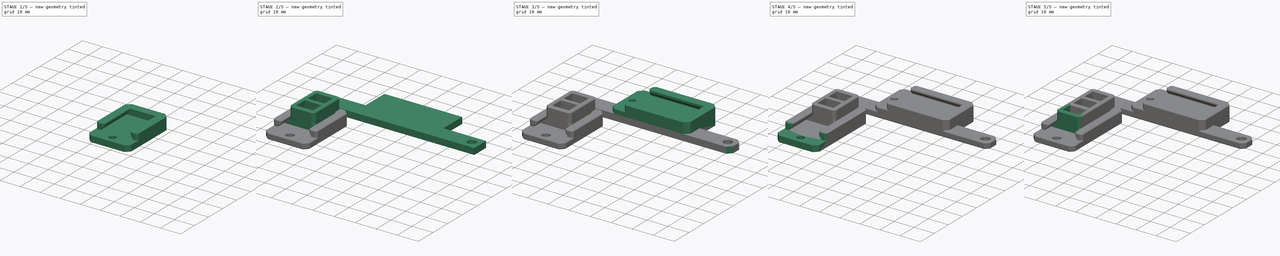
[diagram: build sequence overview — one tinted view per stage of 5, left to right]
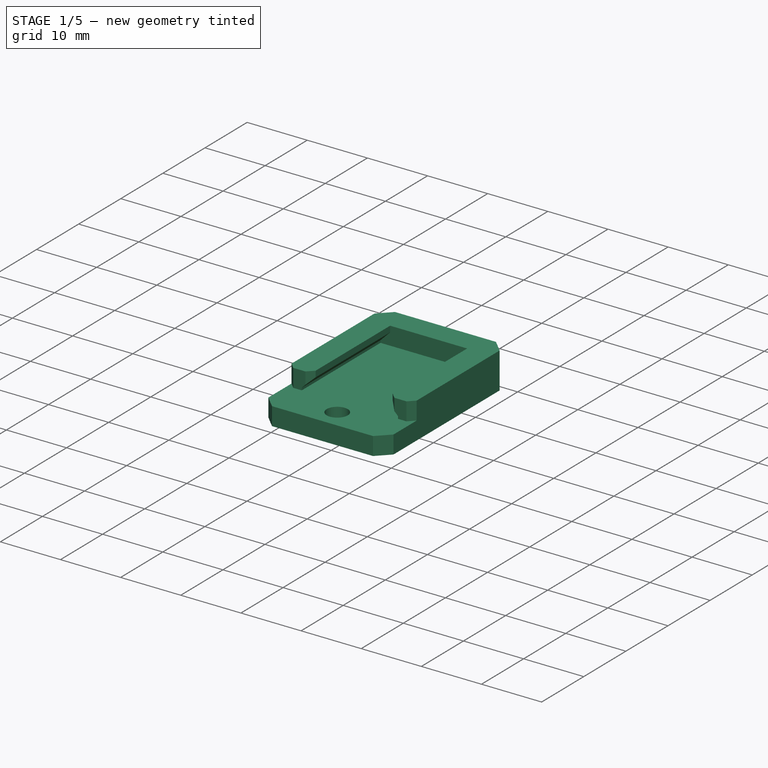
[diagram: stage 1 of 5 — iso view after this stage's code; geometry added in this stage tinted green]
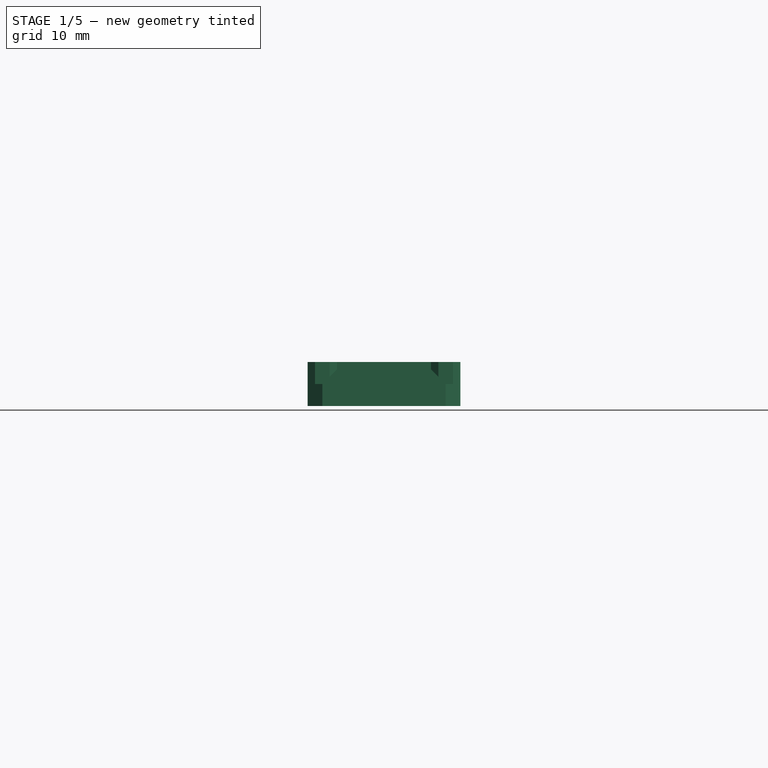
[diagram: stage 1 of 5 — front view after this stage's code; geometry added in this stage tinted green]
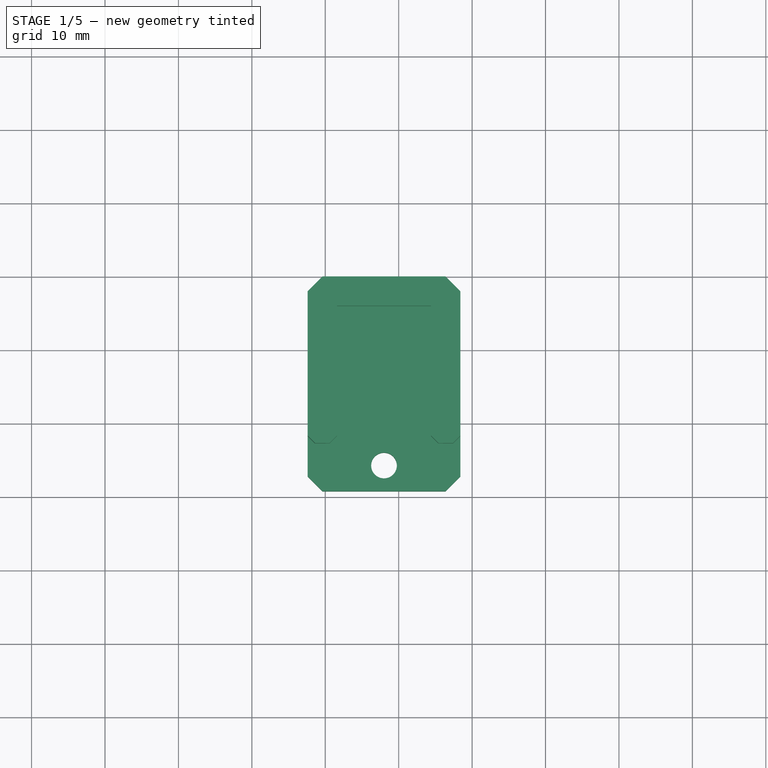
[diagram: stage 1 of 5 — top view after this stage's code; geometry added in this stage tinted green]
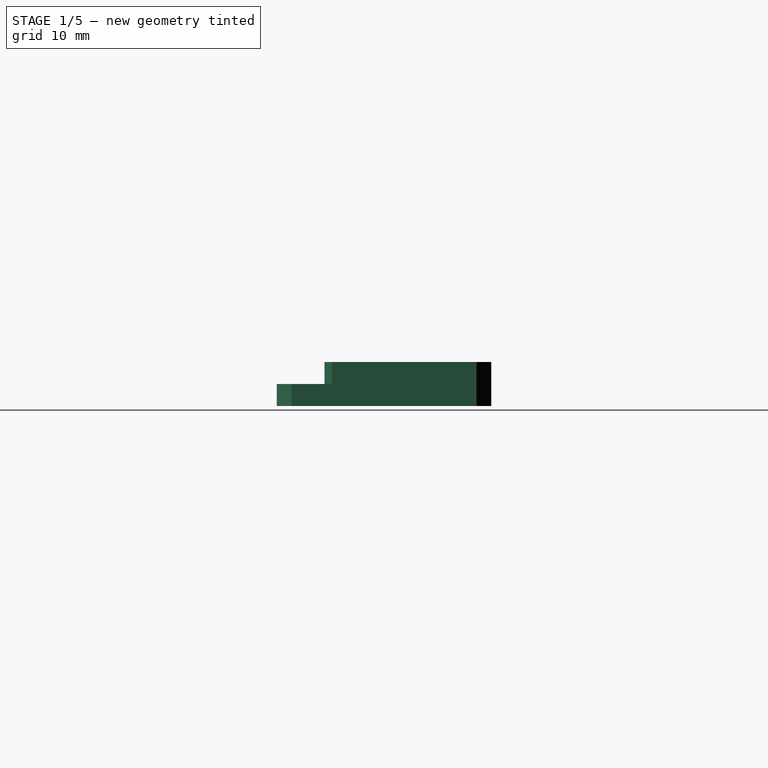
[diagram: stage 1 of 5 — right view after this stage's code; geometry added in this stage tinted green]
FCSTD DOCUMENT  (FreeCAD 1.1R20260414 (Git shallow))
Label: Fan_Hub_JST-XH
License: All rights reserved
LicenseURL: https://en.wikipedia.org/wiki/All_rights_reserved
objects: Sketcher::SketchObject×19, PartDesign::Chamfer×13, PartDesign::Pocket×10, PartDesign::Pad×9, PartDesign::Body×5, App::Point×5
note: 139 computed .brp shape members not serialized (recipe doc carries the construction recipe); baked Part::Feature solids carry a one-line shape summary decoded from their .brp

FEATURE [PartDesign::Body] Body004  label="Holder-2way"
  AllowCompound = false
  Group = -> [Sketch012,Pad006,Sketch013,Pocket006,Sketch014,Pocket007,Chamfer009,Chamfer010]
  Origin = -> Origin007
  Placement = pos=(16,-44.5,8) rot=(0,1,0;3.14159rad)
  Tip = -> Chamfer010
FEATURE [App::Point] Origin010
  Role = Origin
FEATURE [Sketcher::SketchObject] Sketch015
  ArcFitTolerance = 1e-06
  AttachmentSupport = -> [XZ_Plane005]
  ExternalTypes = [0]
  FullyConstrained = true
  MakeInternals = false
  MapMode = 5
  Placement = pos=(0,0,0) rot=(1,0,0;1.5708rad)
  _ExternalGeoVersion = 0
  sketch-geometry (12):
    g0: LineSegment StartX=-2.4 StartY=-3 StartZ=0 EndX=18.4 EndY=-3 EndZ=0
    g1: LineSegment StartX=18.4 StartY=-3 StartZ=0 EndX=18.4 EndY=3 EndZ=0
    g2: LineSegment StartX=18.4 StartY=3 StartZ=0 EndX=14.4 EndY=3 EndZ=0
    g3: LineSegment StartX=14.4 StartY=3 StartZ=0 EndX=14.4 EndY=2 EndZ=0
    g4: LineSegment StartX=14.4 StartY=2 StartZ=0 EndX=16 EndY=0.4 EndZ=0
    g5: LineSegment StartX=16 StartY=0 StartZ=0 EndX=0 EndY=0 EndZ=0
    g6: LineSegment StartX=0 StartY=0.4 StartZ=0 EndX=1.6 EndY=2 EndZ=0
    g7: LineSegment StartX=1.6 StartY=2 StartZ=0 EndX=1.6 EndY=3 EndZ=0
    g8: LineSegment StartX=1.6 StartY=3 StartZ=0 EndX=-2.4 EndY=3 EndZ=0
    g9: LineSegment StartX=-2.4 StartY=3 StartZ=0 EndX=-2.4 EndY=-3 EndZ=0
    g10: LineSegment StartX=0 StartY=0.4 StartZ=0 EndX=0 EndY=0 EndZ=0
    g11: LineSegment StartX=16 StartY=0.4 StartZ=0 EndX=16 EndY=0 EndZ=0
  constraints (35):
    c: Horizontal(g0)
    c: Coincident(g1,g0)
    c: Vertical(g1)
    c: Horizontal(g2)
    c: Vertical(g3)
    c: Horizontal(g8)
    c: Coincident(g9,g8)
    c: Coincident(g0,g9)
    c: Vertical(g9)
    c: Coincident(g8,g7)
    c: Vertical(g7)
    c: Coincident(g3,g2)
    c: Coincident(g1,g2)
    c: Horizontal(g3,g7)
    c: Equal(g3,g7)
    c: Equal(g8,g2)
    c: Distance(g7,g7) = 1
    c: Distance(g0,g-1) = 3
    c: DistanceX(g0,g0) = 20.8
    c: Coincident(g7,g6)
    c: Distance(g6,g-1) = 2
    c: Angle(g5,g6) = 0.785398
    c: Coincident(g3,g4)
    c: Angle(g4,g5) = 0.785398
    c: Coincident(g10,g6)
    c: Coincident(g10,g5)
    c: Vertical(g10)
    c: Coincident(g5,g-1)
    c: Distance(g10,g10) = 0.4
    c: Horizontal(g5)
    c: Coincident(g11,g4)
    c: Coincident(g11,g5)
    c: Vertical(g11)
    c: Equal(g10,g11)
    c: DistanceX(g5,g5) = 16
FEATURE [PartDesign::Pad] Pad007
  Direction = (0,-1,0)
  Length = 29.2
  Length2 = 10
  Placement = pos=(0,0,0) rot=(1,0,0;1.5708rad)
  Profile = -> Sketch015
  ReferenceAxis = -> Sketch015 [N_Axis]
  Refine = true
  SideType = 0
  Suppressed = false
  Type = 0
  Type2 = 0
FEATURE [Sketcher::SketchObject] Sketch016
  ArcFitTolerance = 1e-06
  AttachmentSupport = -> [Pad007]
  ExternalGeometry = -> [Pad007]
  ExternalTypes = [0]
  FullyConstrained = true
  MakeInternals = false
  MapMode = 5
  Placement = pos=(0,0,0) rot=(0,0,1;3.14159rad)
  _ExternalGeoVersion = 0
  sketch-geometry (4):
    g0: LineSegment StartX=-18.4 StartY=-9e-16 StartZ=0 EndX=2.4 EndY=-9e-16 EndZ=0
    g1: LineSegment StartX=2.4 StartY=-9e-16 StartZ=0 EndX=2.4 EndY=4 EndZ=0
    g2: LineSegment StartX=2.4 StartY=4 StartZ=0 EndX=-18.4 EndY=4 EndZ=0
    g3: LineSegment StartX=-18.4 StartY=4 StartZ=0 EndX=-18.4 EndY=-9e-16 EndZ=0
  constraints (10):
    c: Coincident(g0,g1)
    c: Coincident(g1,g2)
    c: Coincident(g2,g3)
    c: Coincident(g3,g0)
    c: Horizontal(g2)
    c: Vertical(g1)
    c: Vertical(g3)
    c: Coincident(g-3,g0)
    c: Coincident(g-4,g0)
    c: DistanceY(g3,g3) = 4
FEATURE [PartDesign::Pad] Pad008
  BaseFeature = -> Pad007
  Direction = (0,0,1)
  Length = 3
  Length2 = 10
  Placement = pos=(0,0,0) rot=(1,0,0;1.5708rad)
  Profile = -> Sketch016
  ReferenceAxis = -> Sketch016 [N_Axis]
  Refine = true
  SideType = 0
  Suppressed = false
  Type = 0
  Type2 = 0
FEATURE [Sketcher::SketchObject] Sketch017
  ArcFitTolerance = 1e-06
  AttachmentSupport = -> [Pad008]
  ExternalGeometry = -> [Pad008]
  ExternalTypes = [0,0]
  FullyConstrained = true
  MakeInternals = false
  MapMode = 5
  Placement = pos=(6.261e-13,-7.06e-14,3) rot=(0,0,1;3.14159rad)
  _ExternalGeoVersion = 0
  sketch-geometry (4):
    g0: LineSegment StartX=-18.4 StartY=29.2 StartZ=0 EndX=-18.4 EndY=22.7 EndZ=0
    g1: LineSegment StartX=-18.4 StartY=22.7 StartZ=0 EndX=2.4 EndY=22.7 EndZ=0
    g2: LineSegment StartX=2.4 StartY=22.7 StartZ=0 EndX=2.4 EndY=29.2 EndZ=0
    g3: LineSegment StartX=2.4 StartY=29.2 StartZ=0 EndX=-18.4 EndY=29.2 EndZ=0
  constraints (10):
    c: Coincident(g0,g1)
    c: Coincident(g1,g2)
    c: Coincident(g2,g3)
    c: Coincident(g3,g0)
    c: Vertical(g0)
    c: Vertical(g2)
    c: Horizontal(g1)
    c: DistanceY(g2,g2) = 6.5
    c: Coincident(g0,g-3)
    c: Coincident(g-4,g2)
FEATURE [PartDesign::Pocket] Pocket008
  BaseFeature = -> Pad008
  Direction = (-2.087e-13,2.35e-14,-1)
  Length = 3
  Length2 = 5
  Placement = pos=(0,0,0) rot=(1,0,0;1.5708rad)
  Profile = -> Sketch017
  ReferenceAxis = -> Sketch017 [N_Axis]
  Refine = true
  SideType = 0
  Suppressed = false
  Type = 0
  Type2 = 0
FEATURE [Sketcher::SketchObject] Sketch018
  ArcFitTolerance = 1e-06
  AttachmentSupport = -> [Pocket008]
  ExternalTypes = [0]
  FullyConstrained = true
  MakeInternals = false
  MapMode = 5
  Placement = pos=(0,0,6.898e-13) rot=(0,0,1;3.14159rad)
  _ExternalGeoVersion = 0
  sketch-geometry (1):
    g0: Circle CenterX=-8 CenterY=25.7 CenterZ=0 NormalX=0 NormalY=0 NormalZ=1 AngleXU=0 Radius=1.75
  constraints (3):
    c: Diameter(g0) = 3.5
    c: Distance(g0,g-2) = 8
    c: Distance(g0,g-1) = 25.7
FEATURE [PartDesign::Pocket] Pocket009
  BaseFeature = -> Pocket008
  Direction = (-6.98e-14,3.57e-14,-1)
  Length = 5
  Length2 = 5
  Placement = pos=(0,0,0) rot=(1,0,0;1.5708rad)
  Profile = -> Sketch018
  ReferenceAxis = -> Sketch018 [N_Axis]
  Refine = true
  SideType = 0
  Suppressed = false
  Type = 1
  Type2 = 0
FEATURE [PartDesign::Chamfer] Chamfer011
  Angle = 45
  Base = -> Pocket009 [Edge42,Edge37,Edge40,Edge35]
  BaseFeature = -> Pocket009
  ChamferType = 0
  FlipDirection = false
  Placement = pos=(0,0,0) rot=(1,0,0;1.5708rad)
  Refine = true
  Size = 2
  Size2 = 1
  SupportTransform = false
  Suppressed = false
  UseAllEdges = false
FEATURE [PartDesign::Chamfer] Chamfer012
  Angle = 45
  Base = -> Chamfer011 [Edge22,Edge42,Edge14,Edge38]
  BaseFeature = -> Chamfer011
  ChamferType = 0
  FlipDirection = false
  Placement = pos=(0,0,0) rot=(1,0,0;1.5708rad)
  Refine = true
  Size = 1
  Size2 = 1
  SupportTransform = false
  Suppressed = false
  UseAllEdges = false
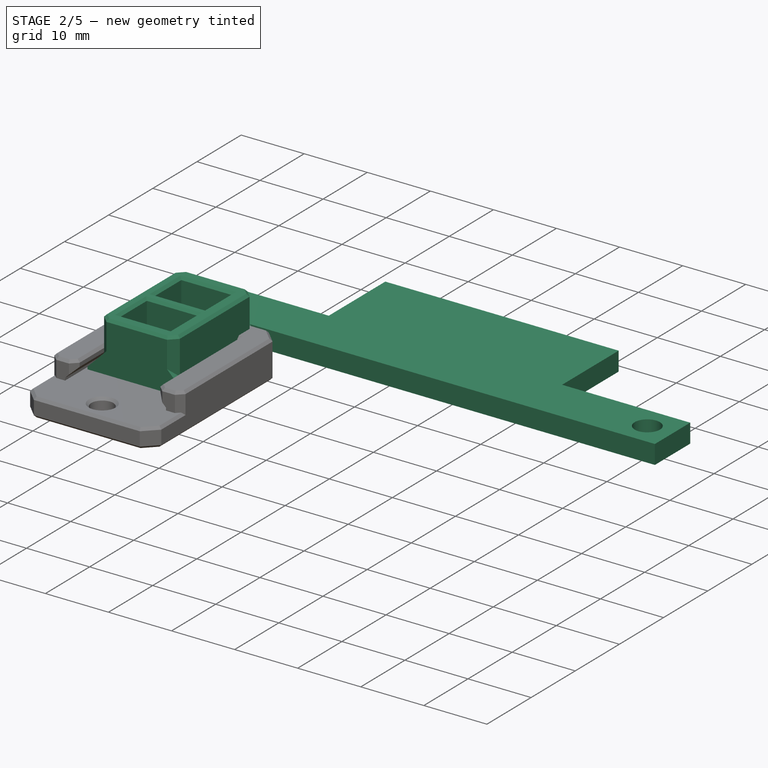
[diagram: stage 2 of 5 — iso view after this stage's code; geometry added in this stage tinted green]
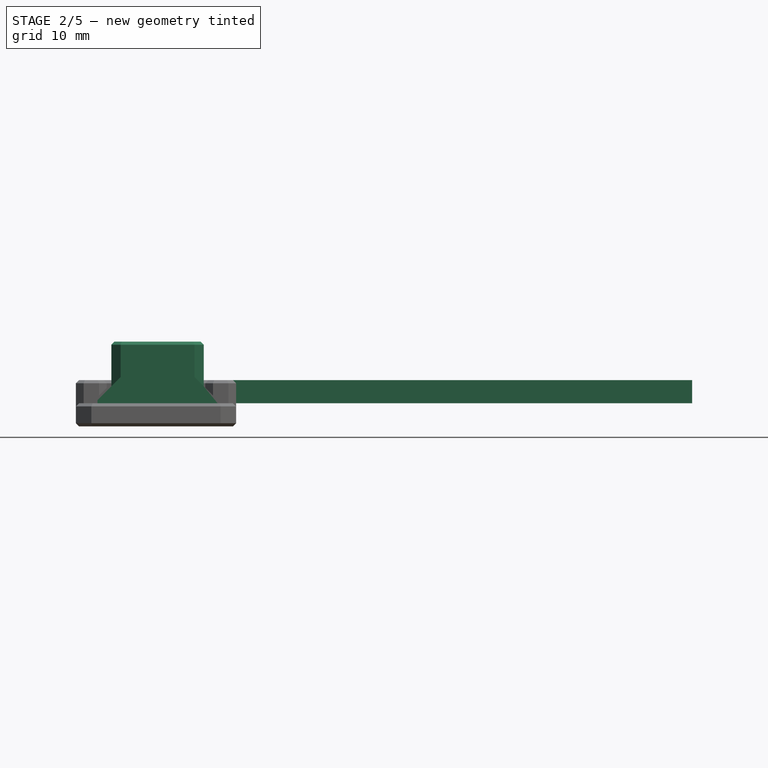
[diagram: stage 2 of 5 — front view after this stage's code; geometry added in this stage tinted green]
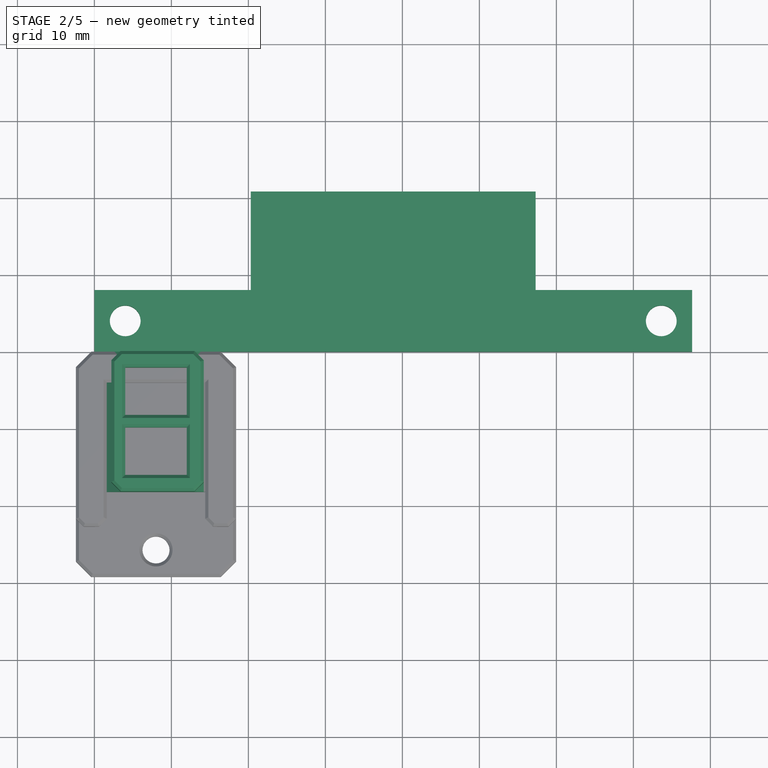
[diagram: stage 2 of 5 — top view after this stage's code; geometry added in this stage tinted green]
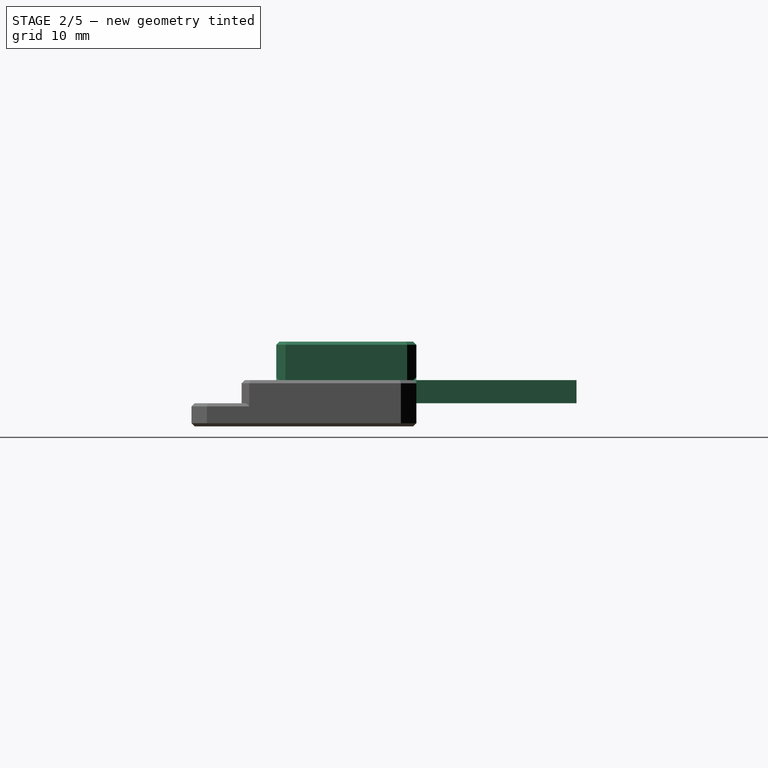
[diagram: stage 2 of 5 — right view after this stage's code; geometry added in this stage tinted green]
FEATURE [PartDesign::Body] Body001  label="BaseExtrusion-3way"
  AllowCompound = false
  Group = -> [Sketch003,Pad001,Sketch004,Pad002,Sketch005,Pocket002,Sketch006,Pocket003,Chamfer,Chamfer003,Chamfer005]
  Origin = -> Origin001
  Placement = pos=(20,0,3) rot=(0,0,1;0rad)
  Tip = -> Chamfer005
FEATURE [Sketcher::SketchObject] Sketch007
  ArcFitTolerance = 1e-06
  AttachmentSupport = -> [XY_Plane003]
  ExternalTypes = [0]
  FullyConstrained = true
  MakeInternals = false
  MapMode = 5
  _ExternalGeoVersion = 0
  sketch-geometry (10):
    g0: LineSegment StartX=0 StartY=0 StartZ=0 EndX=77.625 EndY=0 EndZ=0
    g1: LineSegment StartX=77.625 StartY=0 StartZ=0 EndX=77.625 EndY=8 EndZ=0
    g2: LineSegment StartX=0 StartY=8 StartZ=0 EndX=0 EndY=0 EndZ=0
    g3: Circle CenterX=4 CenterY=4 CenterZ=0 NormalX=0 NormalY=0 NormalZ=1 AngleXU=0 Radius=2
    g4: Circle CenterX=73.625 CenterY=4 CenterZ=0 NormalX=0 NormalY=0 NormalZ=1 AngleXU=0 Radius=2
    g5: LineSegment StartX=0 StartY=8 StartZ=0 EndX=20.3125 EndY=8 EndZ=0
    g6: LineSegment StartX=20.3125 StartY=8 StartZ=0 EndX=20.3125 EndY=20.8 EndZ=0
    g7: LineSegment StartX=20.3125 StartY=20.8 StartZ=0 EndX=57.3125 EndY=20.8 EndZ=0
    g8: LineSegment StartX=57.3125 StartY=20.8 StartZ=0 EndX=57.3125 EndY=8 EndZ=0
    g9: LineSegment StartX=57.3125 StartY=8 StartZ=0 EndX=77.625 EndY=8 EndZ=0
  constraints (29):
    c: Coincident(g0,g1)
    c: Coincident(g2,g0)
    c: Horizontal(g0)
    c: Vertical(g1)
    c: Vertical(g2)
    c: Coincident(g0,g-1)
    c: Diameter(g3) = 4
    c: Equal(g3,g4)
    c: DistanceX(g3,g4) = 69.625
    c: Horizontal(g3,g4)
    c: Distance(g3,g-1) = 4
    c: Distance(g3,g-2) = 4
    c: Distance(g2,g2) = 8
    c: DistanceX(g4,g0) = 4
    c: Coincident(g5,g2)
    c: Horizontal(g5)
    c: Coincident(g6,g5)
    c: Vertical(g6)
    c: Horizontal(g7)
    c: Vertical(g8)
    c: Coincident(g9,g8)
    c: Coincident(g9,g1)
    c: Horizontal(g9)
    c: Distance(g7,g-1) = 20.8
    c: DistanceX(g6,g8) = 37
    c: Equal(g5,g9)
    c: Horizontal(g5,g8)
    c: Coincident(g8,g7)
    c: Coincident(g6,g7)
FEATURE [PartDesign::Pad] Pad003
  Direction = (0,0,1)
  Length = 3
  Length2 = 10
  Profile = -> Sketch007
  ReferenceAxis = -> Sketch007 [N_Axis]
  Refine = true
  SideType = 0
  Suppressed = false
  Type = 0
  Type2 = 0
FEATURE [PartDesign::Body] Body003  label="BaseVoronFans-3way"
  AllowCompound = false
  Group = -> [Sketch007,Pad003,Sketch008,Pad004,Sketch009,Pad005,Sketch010,Pocket004,Sketch011,Pocket005,Chamfer006,Chamfer007,Chamfer008]
  Origin = -> Origin003
  Placement = pos=(0,2,0) rot=(0,0,1;0rad)
  Tip = -> Chamfer008
FEATURE [App::Point] Origin004  label="Origin"
  Role = Origin
FEATURE [App::Point] Origin005  label="Origin"
  Role = Origin
FEATURE [App::Point] Origin006  label="Origin"
  Role = Origin
FEATURE [App::Point] Origin008
  Role = Origin
FEATURE [Sketcher::SketchObject] Sketch012
  ArcFitTolerance = 1e-06
  AttachmentSupport = -> [XZ_Plane004]
  ExternalTypes = [0]
  FullyConstrained = true
  MakeInternals = false
  MapMode = 5
  Placement = pos=(0,0,0) rot=(1,0,0;1.5708rad)
  _ExternalGeoVersion = 0
  sketch-geometry (8):
    g0: LineSegment StartX=0.4 StartY=0.4 StartZ=0 EndX=2.2 EndY=2.2 EndZ=0
    g1: LineSegment StartX=2.2 StartY=2.2 StartZ=0 EndX=2.2 EndY=8 EndZ=0
    g2: LineSegment StartX=2.2 StartY=8 StartZ=0 EndX=14.2 EndY=8 EndZ=0
    g3: LineSegment StartX=14.2 StartY=8 StartZ=0 EndX=14.2 EndY=2.2 EndZ=0
    g4: LineSegment StartX=14.2 StartY=2.2 StartZ=0 EndX=16 EndY=0.4 EndZ=0
    g5: LineSegment StartX=16 StartY=0 StartZ=0 EndX=0.4 EndY=0 EndZ=0
    g6: LineSegment StartX=0.4 StartY=0.4 StartZ=0 EndX=0.4 EndY=0 EndZ=0
    g7: LineSegment StartX=16 StartY=0.4 StartZ=0 EndX=16 EndY=0 EndZ=0
  constraints (24):
    c: Vertical(g1)
    c: Coincident(g2,g1)
    c: Horizontal(g2)
    c: Vertical(g3)
    c: Horizontal(g3,g1)
    c: Coincident(g2,g3)
    c: DistanceX(g2,g2) = 12
    c: Coincident(g1,g0)
    c: Coincident(g3,g4)
    c: Angle(g5,g0) = 0.785398
    c: Equal(g0,g4)
    c: Horizontal(g5)
    c: Coincident(g6,g0)
    c: Coincident(g6,g5)
    c: Vertical(g6)
    c: Distance(g6,g6) = 0.4
    c: Distance(g5,g-1) = 0.4
    c: DistanceY(g5,g2) = 8
    c: Coincident(g7,g4)
    c: Coincident(g7,g5)
    c: Vertical(g7)
    c: Equal(g6,g7)
    c: PointOnObject(g5,g-1)
    c: DistanceX(g5,g5) = 15.6
FEATURE [PartDesign::Pad] Pad006
  Direction = (0,-1,0)
  Length = 18.2
  Length2 = 10
  Placement = pos=(0,0,0) rot=(1,0,0;1.5708rad)
  Profile = -> Sketch012
  ReferenceAxis = -> Sketch012 [N_Axis]
  Refine = true
  SideType = 0
  Suppressed = false
  Type = 0
  Type2 = 0
FEATURE [Sketcher::SketchObject] Sketch013
  ArcFitTolerance = 1e-06
  AttachmentSupport = -> [Pad006]
  ExternalTypes = [0]
  FullyConstrained = true
  MakeInternals = false
  MapMode = 5
  Placement = pos=(0,1.8e-15,8) rot=(0,0,1;3.14159rad)
  _ExternalGeoVersion = 0
  sketch-geometry (8):
    g0: LineSegment StartX=-12 StartY=16.1 StartZ=0 EndX=-12 EndY=9.9 EndZ=0
    g1: LineSegment StartX=-12 StartY=9.9 StartZ=0 EndX=-4 EndY=9.9 EndZ=0
    g2: LineSegment StartX=-4 StartY=9.9 StartZ=0 EndX=-4 EndY=16.1 EndZ=0
    g3: LineSegment StartX=-4 StartY=16.1 StartZ=0 EndX=-12 EndY=16.1 EndZ=0
    g4: LineSegment StartX=-12 StartY=8.3 StartZ=0 EndX=-12 EndY=2.1 EndZ=0
    g5: LineSegment StartX=-12 StartY=2.1 StartZ=0 EndX=-4 EndY=2.1 EndZ=0
    g6: LineSegment StartX=-4 StartY=2.1 StartZ=0 EndX=-4 EndY=8.3 EndZ=0
    g7: LineSegment StartX=-4 StartY=8.3 StartZ=0 EndX=-12 EndY=8.3 EndZ=0
  constraints (24):
    c: Coincident(g0,g1)
    c: Coincident(g1,g2)
    c: Coincident(g2,g3)
    c: Coincident(g3,g0)
    c: Vertical(g0)
    c: Vertical(g2)
    c: Horizontal(g1)
    c: Horizontal(g3)
    c: Coincident(g4,g5)
    c: Coincident(g5,g6)
    c: Coincident(g6,g7)
    c: Coincident(g7,g4)
    c: Vertical(g4)
    c: Vertical(g6)
    c: Horizontal(g5)
    c: Horizontal(g7)
    c: Equal(g3,g7)
    c: Equal(g2,g6)
    c: Distance(g5,g-1) = 2.1
    c: DistanceY(g6,g1) = 1.6
    c: Vertical(g1,g6)
    c: DistanceX(g5,g-1) = 4
    c: DistanceX(g5,g5) = 8
    c: DistanceY(g6,g6) = 6.2
FEATURE [PartDesign::Pocket] Pocket006
  BaseFeature = -> Pad006
  Direction = (0,0,-1)
  Length = 5
  Length2 = 5
  Placement = pos=(0,0,0) rot=(1,0,0;1.5708rad)
  Profile = -> Sketch013
  ReferenceAxis = -> Sketch013 [N_Axis]
  Refine = true
  SideType = 0
  Suppressed = false
  Type = 1
  Type2 = 0
FEATURE [Sketcher::SketchObject] Sketch014
  ArcFitTolerance = 1e-06
  AttachmentSupport = -> [Pocket006]
  ExternalGeometry = -> [Pocket006]
  ExternalTypes = [0,0]
  FullyConstrained = true
  MakeInternals = false
  MapMode = 5
  Placement = pos=(0,0,0) rot=(1,0,0;3.14159rad)
  _ExternalGeoVersion = 0
  sketch-geometry (4):
    g0: LineSegment StartX=4 StartY=16.1 StartZ=0 EndX=4 EndY=2.1 EndZ=0
    g1: LineSegment StartX=4 StartY=2.1 StartZ=0 EndX=12 EndY=2.1 EndZ=0
    g2: LineSegment StartX=12 StartY=2.1 StartZ=0 EndX=12 EndY=16.1 EndZ=0
    g3: LineSegment StartX=12 StartY=16.1 StartZ=0 EndX=4 EndY=16.1 EndZ=0
  constraints (10):
    c: Coincident(g0,g1)
    c: Coincident(g1,g2)
    c: Coincident(g2,g3)
    c: Coincident(g3,g0)
    c: Vertical(g0)
    c: Vertical(g2)
    c: Horizontal(g1)
    c: Horizontal(g3)
    c: Coincident(g1,g-4)
    c: Coincident(g0,g-3)
FEATURE [PartDesign::Pocket] Pocket007
  BaseFeature = -> Pocket006
  Direction = (0,0,1)
  Length = 4
  Length2 = 5
  Placement = pos=(0,0,0) rot=(1,0,0;1.5708rad)
  Profile = -> Sketch014
  ReferenceAxis = -> Sketch014 [N_Axis]
  Refine = true
  SideType = 0
  Suppressed = false
  Type = 0
  Type2 = 0
FEATURE [PartDesign::Chamfer] Chamfer009
  Angle = 45
  Base = -> Pocket007 [Edge12,Edge9,Edge10,Edge17]
  BaseFeature = -> Pocket007
  ChamferType = 0
  FlipDirection = false
  Placement = pos=(0,0,0) rot=(1,0,0;1.5708rad)
  Refine = true
  Size = 1.2
  Size2 = 1
  SupportTransform = false
  Suppressed = false
  UseAllEdges = false
FEATURE [PartDesign::Chamfer] Chamfer010
  Angle = 45
  Base = -> Chamfer009 [Edge23,Edge15,Edge11,Edge13,Edge16,Edge31,Edge33,Edge32,Edge37,Edge36,Edge35,Edge34,Edge41,Edge40,Edge39,Edge38]
  BaseFeature = -> Chamfer009
  ChamferType = 0
  FlipDirection = false
  Placement = pos=(0,0,0) rot=(1,0,0;1.5708rad)
  Refine = true
  Size = 0.4
  Size2 = 1
  SupportTransform = false
  Suppressed = false
  UseAllEdges = false
FEATURE [PartDesign::Chamfer] Chamfer013
  Angle = 45
  Base = -> Chamfer012 [Edge66,Edge65,Edge27,Edge38,Edge43,Edge47,Edge51,Edge67,Edge53,Edge15,Edge55,Edge54,Edge49,Edge45,Edge39,Edge56,Edge58,Edge32,Edge59,Edge60,Edge16,Edge21,Edge25,Edge57,Edge6,Edge8,Edge10,Edge12,Edge14]
  BaseFeature = -> Chamfer012
  ChamferType = 0
  FlipDirection = false
  Placement = pos=(0,0,0) rot=(1,0,0;1.5708rad)
  Refine = true
  Size = 0.4
  Size2 = 1
  SupportTransform = false
  Suppressed = false
  UseAllEdges = false
FEATURE [PartDesign::Body] Body005  label="BaseExtrusion-2way"
  AllowCompound = false
  Group = -> [Sketch015,Pad007,Sketch016,Pad008,Sketch017,Pocket008,Sketch018,Pocket009,Chamfer011,Chamfer012,Chamfer013]
  Origin = -> Origin009
  Placement = pos=(20,-40.5,3) rot=(0,0,1;0rad)
  Tip = -> Chamfer013
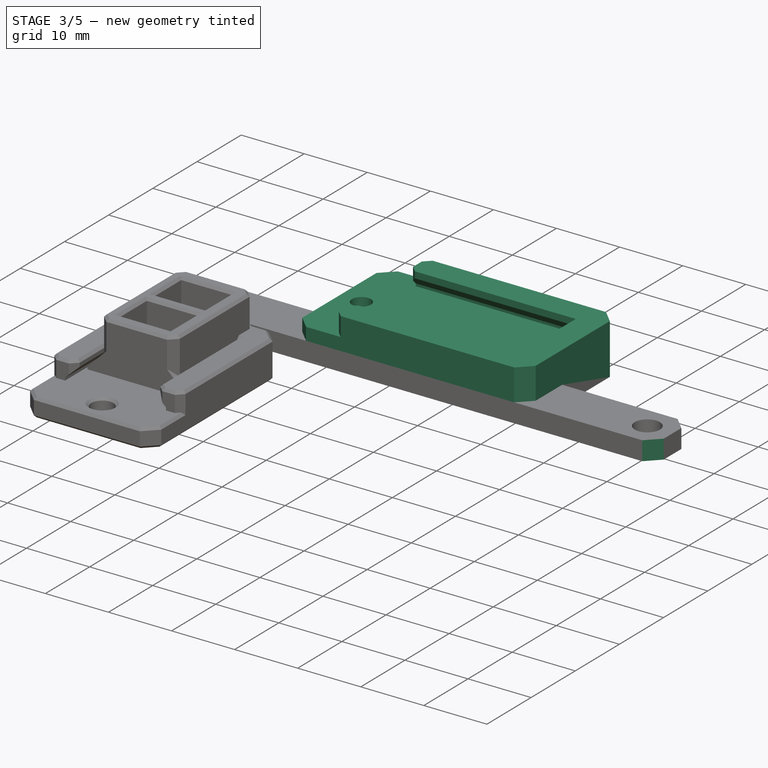
[diagram: stage 3 of 5 — iso view after this stage's code; geometry added in this stage tinted green]
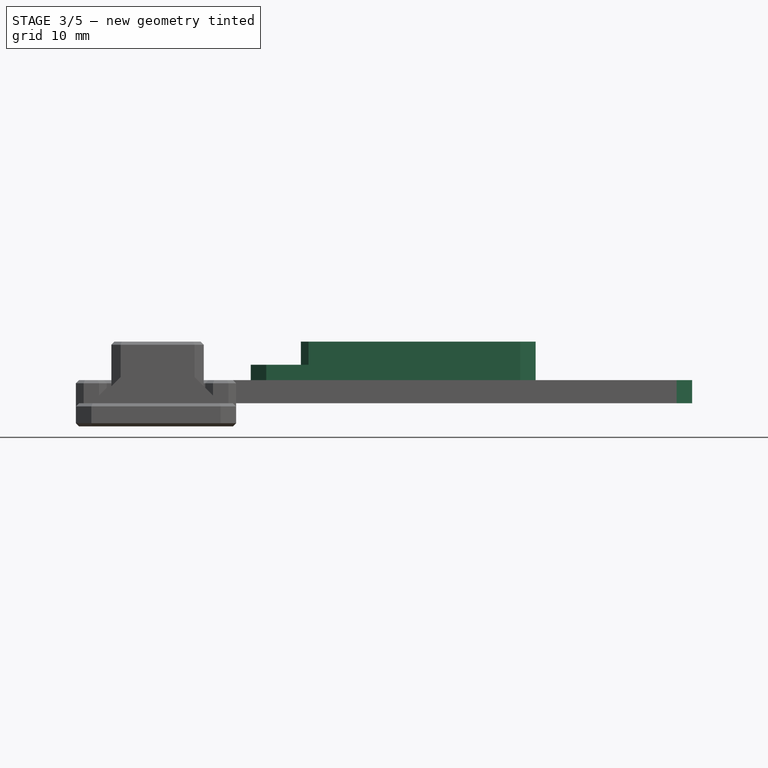
[diagram: stage 3 of 5 — front view after this stage's code; geometry added in this stage tinted green]
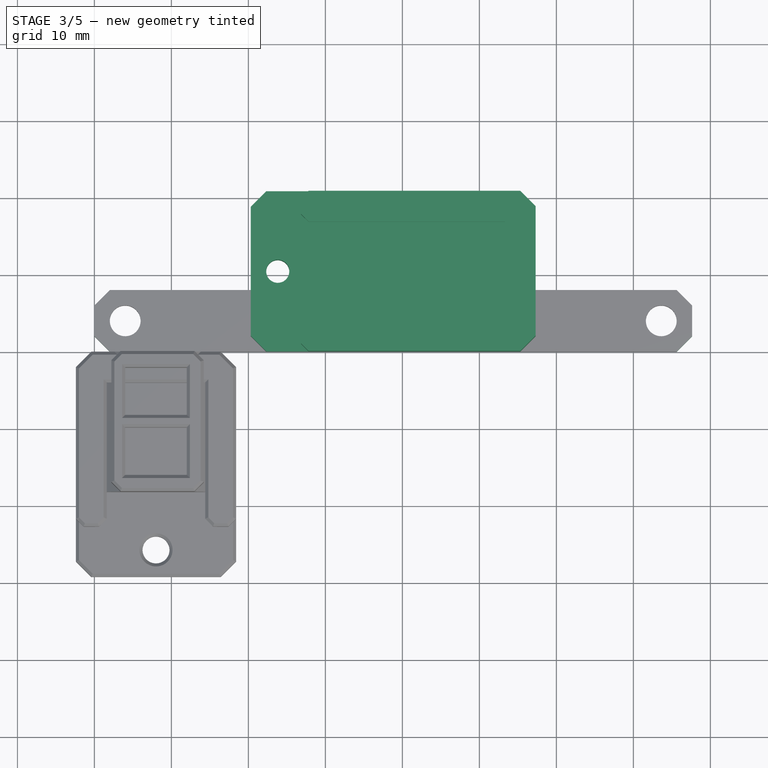
[diagram: stage 3 of 5 — top view after this stage's code; geometry added in this stage tinted green]
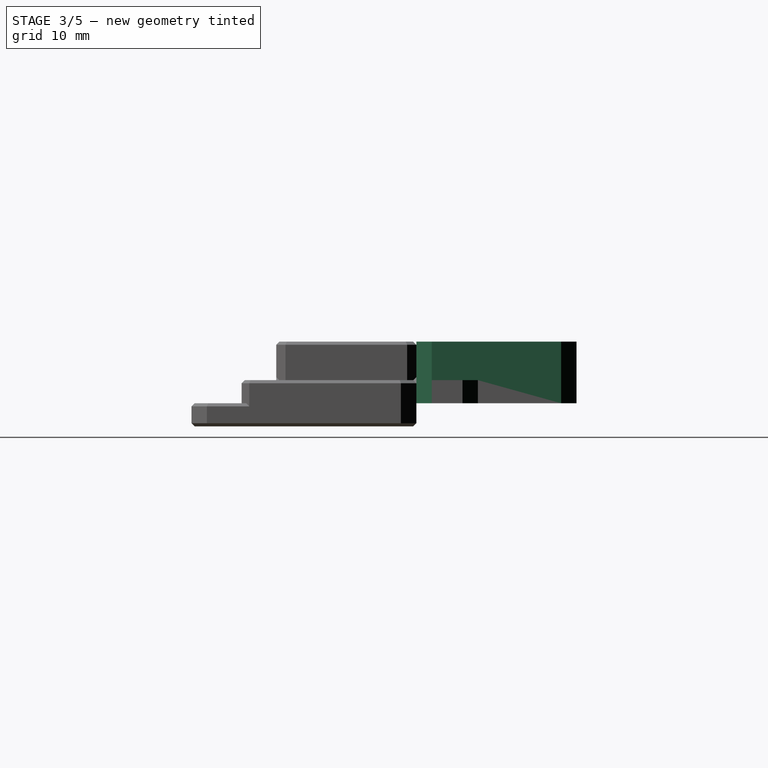
[diagram: stage 3 of 5 — right view after this stage's code; geometry added in this stage tinted green]
FEATURE [Sketcher::SketchObject] Sketch008
  ArcFitTolerance = 1e-06
  AttachmentSupport = -> [Pad003]
  ExternalGeometry = -> [Pad003]
  ExternalTypes = [0]
  FullyConstrained = true
  MakeInternals = false
  MapMode = 5
  Placement = pos=(20.3125,0,0) rot=(0.57735,-0.57735,-0.57735;2.0944rad)
  _ExternalGeoVersion = 0
  sketch-geometry (12):
    g0: LineSegment StartX=-20.8 StartY=3 StartZ=0 EndX=0 EndY=3 EndZ=0
    g1: LineSegment StartX=0 StartY=3 StartZ=0 EndX=0 EndY=8 EndZ=0
    g2: LineSegment StartX=0 StartY=8 StartZ=0 EndX=-4 EndY=8 EndZ=0
    g3: LineSegment StartX=-4 StartY=8 StartZ=0 EndX=-4 EndY=7 EndZ=0
    g4: LineSegment StartX=-4 StartY=7 StartZ=0 EndX=-2.4 EndY=5.4 EndZ=0
    g5: LineSegment StartX=-2.4 StartY=5 StartZ=0 EndX=-18.4 EndY=5 EndZ=0
    g6: LineSegment StartX=-18.4 StartY=5.4 StartZ=0 EndX=-16.8 EndY=7 EndZ=0
    g7: LineSegment StartX=-16.8 StartY=7 StartZ=0 EndX=-16.8 EndY=8 EndZ=0
    g8: LineSegment StartX=-16.8 StartY=8 StartZ=0 EndX=-20.8 EndY=8 EndZ=0
    g9: LineSegment StartX=-20.8 StartY=8 StartZ=0 EndX=-20.8 EndY=3 EndZ=0
    g10: LineSegment StartX=-18.4 StartY=5.4 StartZ=0 EndX=-18.4 EndY=5 EndZ=0
    g11: LineSegment StartX=-2.4 StartY=5.4 StartZ=0 EndX=-2.4 EndY=5 EndZ=0
  constraints (35):
    c: Horizontal(g0)
    c: Coincident(g1,g0)
    c: Vertical(g1)
    c: Horizontal(g2)
    c: Vertical(g3)
    c: Horizontal(g8)
    c: Coincident(g9,g8)
    c: Coincident(g0,g9)
    c: Vertical(g9)
    c: Coincident(g8,g7)
    c: Vertical(g7)
    c: Coincident(g3,g2)
    c: Coincident(g1,g2)
    c: Horizontal(g3,g7)
    c: Equal(g3,g7)
    c: Equal(g8,g2)
    c: Distance(g7,g7) = 1
    c: DistanceX(g0,g0) = 20.8
    c: Coincident(g7,g6)
    c: Angle(g5,g6) = 0.785398
    c: Coincident(g3,g4)
    c: Angle(g4,g5) = 0.785398
    c: Coincident(g10,g6)
    c: Coincident(g10,g5)
    c: Vertical(g10)
    c: Distance(g10,g10) = 0.4
    c: Horizontal(g5)
    c: Coincident(g11,g4)
    c: Coincident(g11,g5)
    c: Vertical(g11)
    c: Equal(g10,g11)
    c: DistanceX(g5,g5) = 16
    c: DistanceY(g9,g9) = 5
    c: DistanceY(g5,g6) = 2
    c: Coincident(g0,g-3)
FEATURE [PartDesign::Pad] Pad004
  BaseFeature = -> Pad003
  Direction = (-1,0,0)
  Length = 37
  Length2 = 10
  Profile = -> Sketch008
  ReferenceAxis = -> Sketch008 [N_Axis]
  Refine = true
  Reversed = true
  SideType = 0
  Suppressed = false
  Type = 0
  Type2 = 0
FEATURE [Sketcher::SketchObject] Sketch009
  ArcFitTolerance = 1e-06
  AttachmentSupport = -> [Pad004]
  ExternalGeometry = -> [Pad004]
  ExternalTypes = [0]
  FullyConstrained = true
  MakeInternals = false
  MapMode = 5
  Placement = pos=(0,0,5) rot=(0,0,1;0rad)
  _ExternalGeoVersion = 0
  sketch-geometry (4):
    g0: LineSegment StartX=53.3125 StartY=0 StartZ=0 EndX=57.3125 EndY=0 EndZ=0
    g1: LineSegment StartX=57.3125 StartY=0 StartZ=0 EndX=57.3125 EndY=20.8 EndZ=0
    g2: LineSegment StartX=57.3125 StartY=20.8 StartZ=0 EndX=53.3125 EndY=20.8 EndZ=0
    g3: LineSegment StartX=53.3125 StartY=20.8 StartZ=0 EndX=53.3125 EndY=0 EndZ=0
  constraints (11):
    c: Coincident(g0,g1)
    c: Coincident(g1,g2)
    c: Coincident(g2,g3)
    c: Coincident(g3,g0)
    c: Horizontal(g0)
    c: Horizontal(g2)
    c: Vertical(g1)
    c: Vertical(g3)
    c: PointOnObject(g0,g-1)
    c: Coincident(g1,g-3)
    c: Distance(g0,g0) = 4
FEATURE [PartDesign::Pad] Pad005
  BaseFeature = -> Pad004
  Direction = (0,0,1)
  Length = 3
  Length2 = 10
  Profile = -> Sketch009
  ReferenceAxis = -> Sketch009 [N_Axis]
  Refine = true
  SideType = 0
  Suppressed = false
  Type = 0
  Type2 = 0
FEATURE [Sketcher::SketchObject] Sketch010
  ArcFitTolerance = 1e-06
  AttachmentSupport = -> [Pad005]
  ExternalGeometry = -> [Pad005]
  ExternalTypes = [0]
  FullyConstrained = true
  MakeInternals = false
  MapMode = 5
  Placement = pos=(0,0,8) rot=(0,0,1;0rad)
  _ExternalGeoVersion = 0
  sketch-geometry (4):
    g0: LineSegment StartX=26.8125 StartY=0 StartZ=0 EndX=26.8125 EndY=20.8 EndZ=0
    g1: LineSegment StartX=26.8125 StartY=20.8 StartZ=0 EndX=20.3125 EndY=20.8 EndZ=0
    g2: LineSegment StartX=20.3125 StartY=20.8 StartZ=0 EndX=20.3125 EndY=0 EndZ=0
    g3: LineSegment StartX=20.3125 StartY=0 StartZ=0 EndX=26.8125 EndY=0 EndZ=0
  constraints (11):
    c: Coincident(g0,g1)
    c: Coincident(g1,g2)
    c: Coincident(g2,g3)
    c: Coincident(g3,g0)
    c: Vertical(g0)
    c: Vertical(g2)
    c: Horizontal(g1)
    c: Horizontal(g3)
    c: PointOnObject(g0,g-1)
    c: Coincident(g1,g-3)
    c: Distance(g1,g1) = 6.5
FEATURE [PartDesign::Pocket] Pocket004
  BaseFeature = -> Pad005
  Direction = (0,0,-1)
  Length = 3
  Length2 = 5
  Profile = -> Sketch010
  ReferenceAxis = -> Sketch010 [N_Axis]
  Refine = true
  SideType = 0
  Suppressed = false
  Type = 0
  Type2 = 0
FEATURE [Sketcher::SketchObject] Sketch011
  ArcFitTolerance = 1e-06
  AttachmentSupport = -> [Pocket004]
  ExternalGeometry = -> [Pocket004]
  ExternalTypes = [0]
  FullyConstrained = true
  MakeInternals = false
  MapMode = 5
  Placement = pos=(0,0,5) rot=(0,0,1;0rad)
  _ExternalGeoVersion = 0
  sketch-geometry (1):
    g0: Circle CenterX=23.8125 CenterY=10.4 CenterZ=0 NormalX=0 NormalY=0 NormalZ=1 AngleXU=0 Radius=1.5
  constraints (3):
    c: Diameter(g0) = 3
    c: DistanceX(g-3,g0) = 3.5
    c: DistanceY(g-3,g0) = 10.4
FEATURE [PartDesign::Pocket] Pocket005
  BaseFeature = -> Pocket004
  Direction = (0,0,-1)
  Length = 5
  Length2 = 5
  Profile = -> Sketch011
  ReferenceAxis = -> Sketch011 [N_Axis]
  Refine = true
  SideType = 0
  Suppressed = false
  Type = 1
  Type2 = 0
FEATURE [PartDesign::Chamfer] Chamfer006
  Angle = 45
  Base = -> Pocket005 [Edge9,Edge11,Edge26,Edge29,Edge39,Edge28,Edge1,Edge5]
  BaseFeature = -> Pocket005
  ChamferType = 0
  FlipDirection = false
  Refine = true
  Size = 2
  Size2 = 1
  SupportTransform = false
  Suppressed = false
  UseAllEdges = false
FEATURE [PartDesign::Chamfer] Chamfer007
  Angle = 45
  Base = -> Chamfer006 [Edge40,Edge81,Edge83,Edge45]
  BaseFeature = -> Chamfer006
  ChamferType = 0
  FlipDirection = false
  Refine = true
  Size = 1
  Size2 = 1
  SupportTransform = false
  Suppressed = false
  UseAllEdges = false
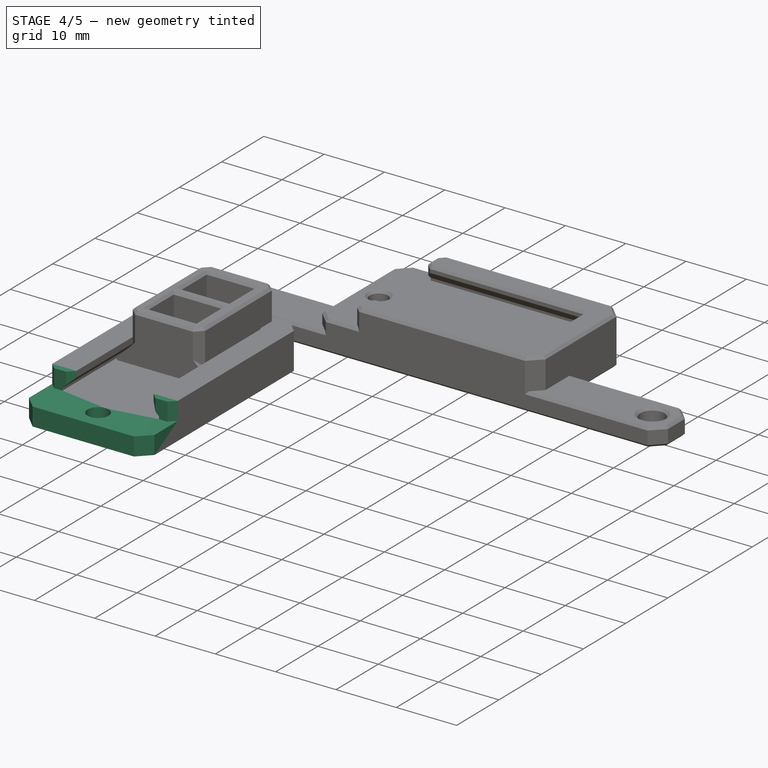
[diagram: stage 4 of 5 — iso view after this stage's code; geometry added in this stage tinted green]
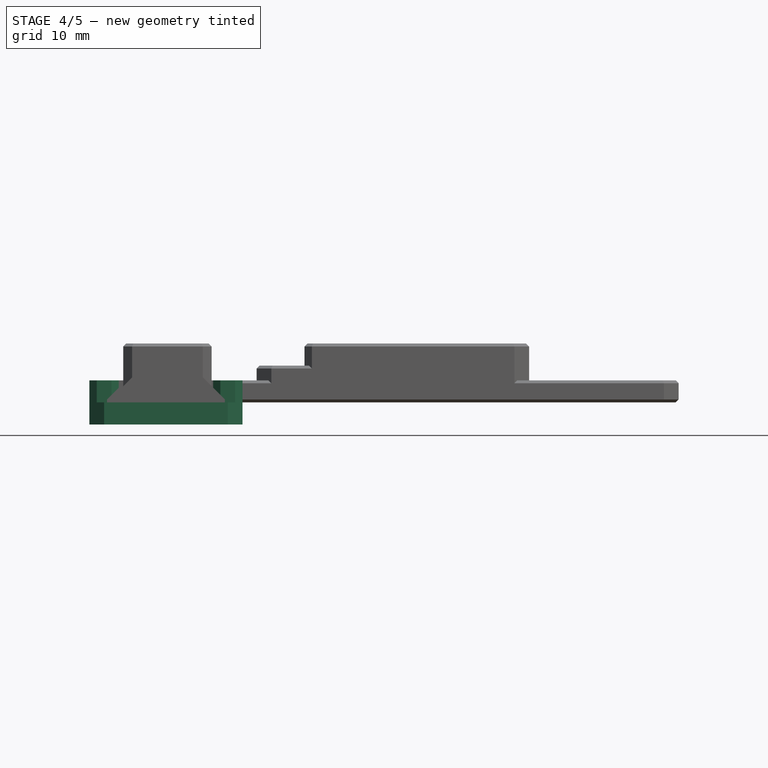
[diagram: stage 4 of 5 — front view after this stage's code; geometry added in this stage tinted green]
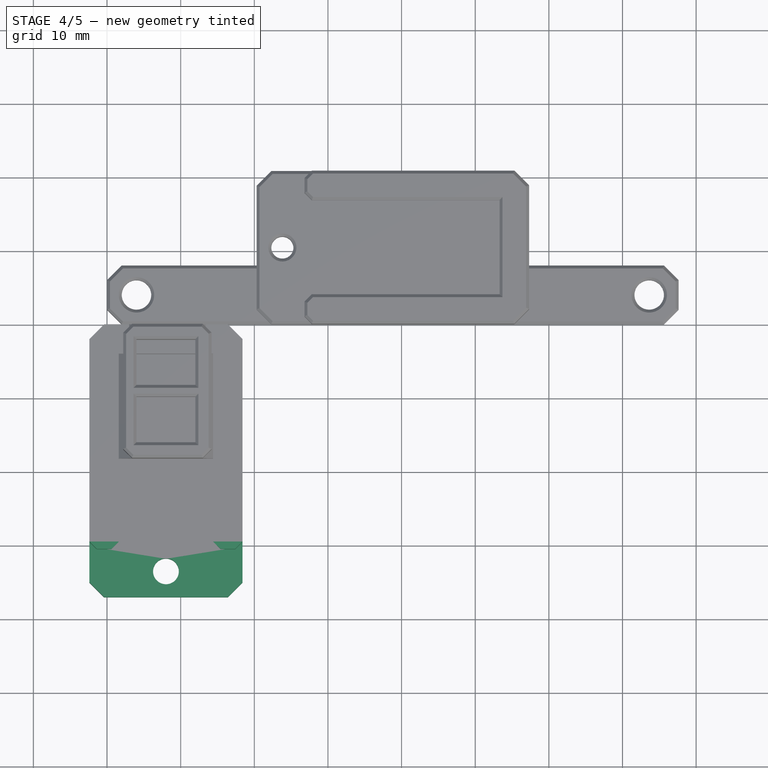
[diagram: stage 4 of 5 — top view after this stage's code; geometry added in this stage tinted green]
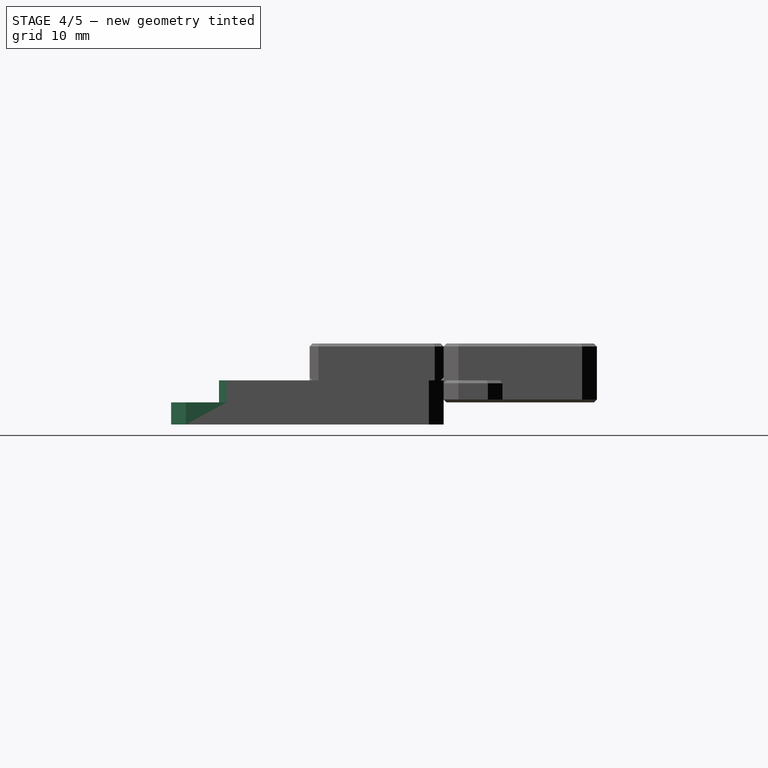
[diagram: stage 4 of 5 — right view after this stage's code; geometry added in this stage tinted green]
FEATURE [Sketcher::SketchObject] Sketch003
  ArcFitTolerance = 1e-06
  AttachmentSupport = -> [XZ_Plane001]
  ExternalTypes = [0]
  FullyConstrained = true
  MakeInternals = false
  MapMode = 5
  Placement = pos=(0,0,0) rot=(1,0,0;1.5708rad)
  _ExternalGeoVersion = 0
  sketch-geometry (12):
    g0: LineSegment StartX=-2.4 StartY=-3 StartZ=0 EndX=18.4 EndY=-3 EndZ=0
    g1: LineSegment StartX=18.4 StartY=-3 StartZ=0 EndX=18.4 EndY=3 EndZ=0
    g2: LineSegment StartX=18.4 StartY=3 StartZ=0 EndX=14.4 EndY=3 EndZ=0
    g3: LineSegment StartX=14.4 StartY=3 StartZ=0 EndX=14.4 EndY=2 EndZ=0
    g4: LineSegment StartX=14.4 StartY=2 StartZ=0 EndX=16 EndY=0.4 EndZ=0
    g5: LineSegment StartX=16 StartY=0 StartZ=0 EndX=0 EndY=0 EndZ=0
    g6: LineSegment StartX=0 StartY=0.4 StartZ=0 EndX=1.6 EndY=2 EndZ=0
    g7: LineSegment StartX=1.6 StartY=2 StartZ=0 EndX=1.6 EndY=3 EndZ=0
    g8: LineSegment StartX=1.6 StartY=3 StartZ=0 EndX=-2.4 EndY=3 EndZ=0
    g9: LineSegment StartX=-2.4 StartY=3 StartZ=0 EndX=-2.4 EndY=-3 EndZ=0
    g10: LineSegment StartX=0 StartY=0.4 StartZ=0 EndX=0 EndY=0 EndZ=0
    g11: LineSegment StartX=16 StartY=0.4 StartZ=0 EndX=16 EndY=0 EndZ=0
  constraints (35):
    c: Horizontal(g0)
    c: Coincident(g1,g0)
    c: Vertical(g1)
    c: Horizontal(g2)
    c: Vertical(g3)
    c: Horizontal(g8)
    c: Coincident(g9,g8)
    c: Coincident(g0,g9)
    c: Vertical(g9)
    c: Coincident(g8,g7)
    c: Vertical(g7)
    c: Coincident(g3,g2)
    c: Coincident(g1,g2)
    c: Horizontal(g3,g7)
    c: Equal(g3,g7)
    c: Equal(g8,g2)
    c: Distance(g7,g7) = 1
    c: Distance(g0,g-1) = 3
    c: DistanceX(g0,g0) = 20.8
    c: Coincident(g7,g6)
    c: Distance(g6,g-1) = 2
    c: Angle(g5,g6) = 0.785398
    c: Coincident(g3,g4)
    c: Angle(g4,g5) = 0.785398
    c: Coincident(g10,g6)
    c: Coincident(g10,g5)
    c: Vertical(g10)
    c: Coincident(g5,g-1)
    c: Distance(g10,g10) = 0.4
    c: Horizontal(g5)
    c: Coincident(g11,g4)
    c: Coincident(g11,g5)
    c: Vertical(g11)
    c: Equal(g10,g11)
    c: DistanceX(g5,g5) = 16
FEATURE [PartDesign::Pad] Pad001
  Direction = (0,-1,2e-16)
  Length = 37
  Length2 = 10
  Placement = pos=(0,0,0) rot=(1,0,0;1.5708rad)
  Profile = -> Sketch003
  ReferenceAxis = -> Sketch003 [N_Axis]
  Refine = true
  SideType = 0
  Suppressed = false
  Type = 0
  Type2 = 0
FEATURE [Sketcher::SketchObject] Sketch004
  ArcFitTolerance = 1e-06
  AttachmentSupport = -> [Pad001]
  ExternalGeometry = -> [Pad001]
  ExternalTypes = [0]
  FullyConstrained = true
  MakeInternals = false
  MapMode = 5
  Placement = pos=(0,0,0) rot=(0,0,1;3.14159rad)
  _ExternalGeoVersion = 0
  sketch-geometry (4):
    g0: LineSegment StartX=-18.4 StartY=-9e-16 StartZ=0 EndX=2.4 EndY=-9e-16 EndZ=0
    g1: LineSegment StartX=2.4 StartY=-9e-16 StartZ=0 EndX=2.4 EndY=4 EndZ=0
    g2: LineSegment StartX=2.4 StartY=4 StartZ=0 EndX=-18.4 EndY=4 EndZ=0
    g3: LineSegment StartX=-18.4 StartY=4 StartZ=0 EndX=-18.4 EndY=-9e-16 EndZ=0
  constraints (10):
    c: Coincident(g0,g1)
    c: Coincident(g1,g2)
    c: Coincident(g2,g3)
    c: Coincident(g3,g0)
    c: Horizontal(g2)
    c: Vertical(g1)
    c: Vertical(g3)
    c: Coincident(g-3,g0)
    c: Coincident(g-4,g0)
    c: DistanceY(g3,g3) = 4
FEATURE [PartDesign::Pad] Pad002
  BaseFeature = -> Pad001
  Direction = (0,0,1)
  Length = 3
  Length2 = 10
  Placement = pos=(0,0,0) rot=(1,0,0;1.5708rad)
  Profile = -> Sketch004
  ReferenceAxis = -> Sketch004 [N_Axis]
  Refine = true
  SideType = 0
  Suppressed = false
  Type = 0
  Type2 = 0
FEATURE [Sketcher::SketchObject] Sketch005
  ArcFitTolerance = 1e-06
  AttachmentSupport = -> [Pad002]
  ExternalGeometry = -> [Pad002]
  ExternalTypes = [0]
  FullyConstrained = true
  MakeInternals = false
  MapMode = 5
  Placement = pos=(6.401e-13,-4.63e-14,3) rot=(0,0,1;3.14159rad)
  _ExternalGeoVersion = 0
  sketch-geometry (4):
    g0: LineSegment StartX=-18.4 StartY=37 StartZ=0 EndX=-18.4 EndY=30.5 EndZ=0
    g1: LineSegment StartX=-18.4 StartY=30.5 StartZ=0 EndX=2.4 EndY=30.5 EndZ=0
    g2: LineSegment StartX=2.4 StartY=30.5 StartZ=0 EndX=2.4 EndY=37 EndZ=0
    g3: LineSegment StartX=2.4 StartY=37 StartZ=0 EndX=-18.4 EndY=37 EndZ=0
  constraints (10):
    c: Coincident(g0,g1)
    c: Coincident(g1,g2)
    c: Coincident(g2,g3)
    c: Coincident(g3,g0)
    c: Vertical(g0)
    c: Vertical(g2)
    c: Horizontal(g1)
    c: Coincident(g0,g-4)
    c: Coincident(g2,g-3)
    c: DistanceY(g2,g2) = 6.5
FEATURE [PartDesign::Pocket] Pocket002
  BaseFeature = -> Pad002
  Direction = (-2.134e-13,1.54e-14,-1)
  Length = 3
  Length2 = 5
  Placement = pos=(0,0,0) rot=(1,0,0;1.5708rad)
  Profile = -> Sketch005
  ReferenceAxis = -> Sketch005 [N_Axis]
  Refine = true
  SideType = 0
  Suppressed = false
  Type = 0
  Type2 = 0
FEATURE [Sketcher::SketchObject] Sketch006
  ArcFitTolerance = 1e-06
  AttachmentSupport = -> [Pocket002]
  ExternalTypes = [0]
  FullyConstrained = true
  MakeInternals = false
  MapMode = 5
  Placement = pos=(0,0,6.051e-13) rot=(0,0,1;3.14159rad)
  _ExternalGeoVersion = 0
  sketch-geometry (1):
    g0: Circle CenterX=-8 CenterY=33.5 CenterZ=0 NormalX=0 NormalY=0 NormalZ=1 AngleXU=0 Radius=1.75
  constraints (3):
    c: Diameter(g0) = 3.5
    c: Distance(g0,g-2) = 8
    c: Distance(g0,g-1) = 33.5
FEATURE [PartDesign::Pocket] Pocket003
  BaseFeature = -> Pocket002
  Direction = (-6.21e-14,2.47e-14,-1)
  Length = 5
  Length2 = 5
  Placement = pos=(0,0,0) rot=(1,0,0;1.5708rad)
  Profile = -> Sketch006
  ReferenceAxis = -> Sketch006 [N_Axis]
  Refine = true
  SideType = 0
  Suppressed = false
  Type = 1
  Type2 = 0
FEATURE [PartDesign::Chamfer] Chamfer
  Angle = 45
  Base = -> Pocket003 [Edge42,Edge37,Edge40,Edge35]
  BaseFeature = -> Pocket003
  ChamferType = 0
  FlipDirection = false
  Placement = pos=(0,0,0) rot=(1,0,0;1.5708rad)
  Refine = true
  Size = 2
  Size2 = 1
  SupportTransform = false
  Suppressed = false
  UseAllEdges = false
FEATURE [PartDesign::Chamfer] Chamfer003
  Angle = 45
  Base = -> Chamfer [Edge22,Edge42,Edge14,Edge38]
  BaseFeature = -> Chamfer
  ChamferType = 0
  FlipDirection = false
  Placement = pos=(0,0,0) rot=(1,0,0;1.5708rad)
  Refine = true
  Size = 1
  Size2 = 1
  SupportTransform = false
  Suppressed = false
  UseAllEdges = false
FEATURE [PartDesign::Chamfer] Chamfer008
  Angle = 45
  Base = -> Chamfer007 [Edge40,Edge42,Edge43,Edge44,Edge46,Edge48,Edge47,Edge45,Edge24,Edge5,Edge41,Edge39,Edge37,Edge38,Edge49,Edge51,Edge50,Edge71,Edge98,Edge97,Edge95,Edge93,Edge107,Edge67,Edge100,Edge102,Edge105,Edge104,Edge109,Edge35,Edge33,Edge31,Edge29,Edge6,Edge36,Edge10,Edge8,Edge1,Edge9,Edge11,+9 more]
  BaseFeature = -> Chamfer007
  ChamferType = 0
  FlipDirection = false
  Refine = true
  Size = 0.4
  Size2 = 1
  SupportTransform = false
  Suppressed = false
  UseAllEdges = false
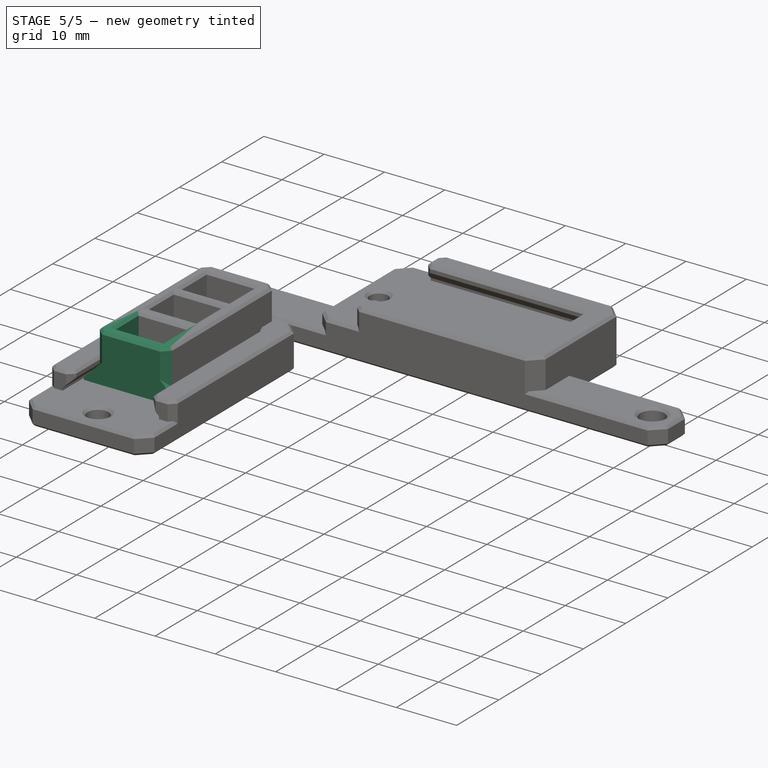
[diagram: stage 5 of 5 — iso view after this stage's code; geometry added in this stage tinted green]
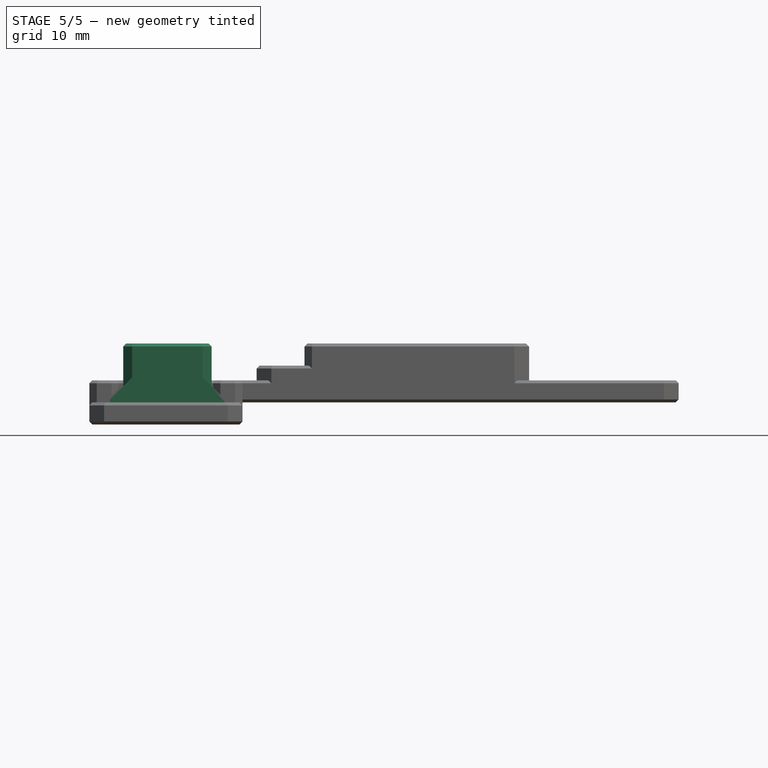
[diagram: stage 5 of 5 — front view after this stage's code; geometry added in this stage tinted green]
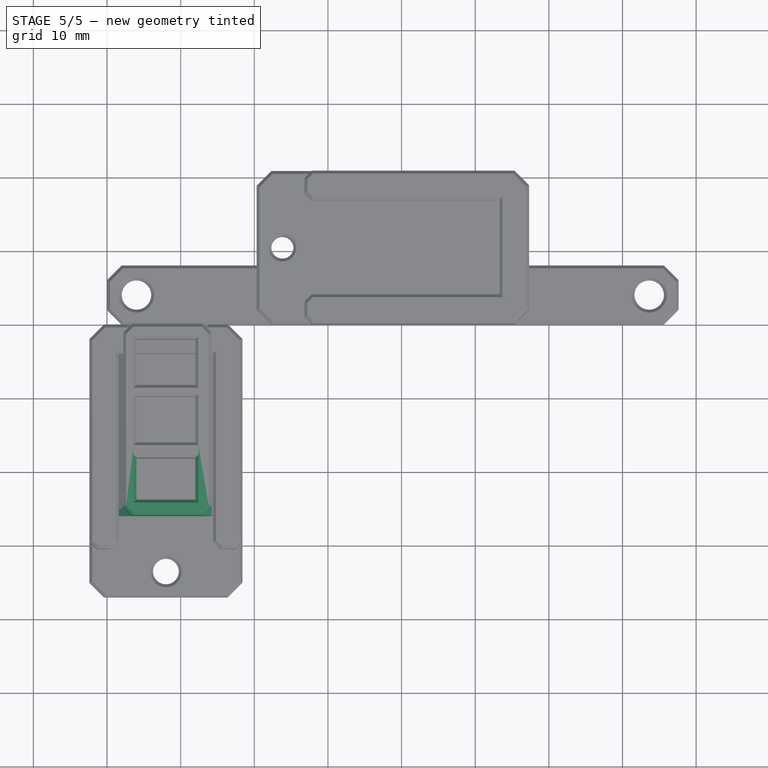
[diagram: stage 5 of 5 — top view after this stage's code; geometry added in this stage tinted green]
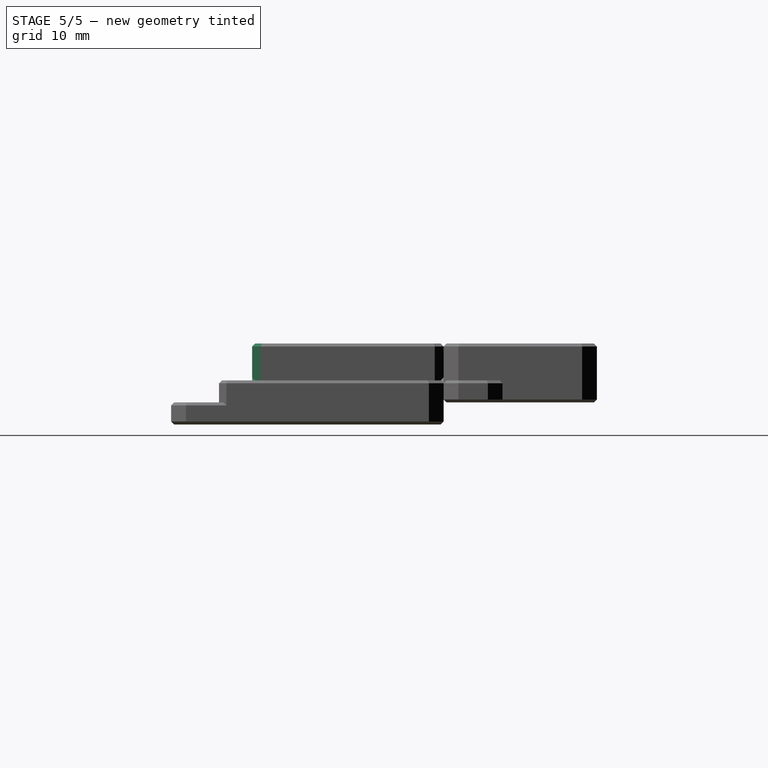
[diagram: stage 5 of 5 — right view after this stage's code; geometry added in this stage tinted green]
FEATURE [Sketcher::SketchObject] Sketch
  ArcFitTolerance = 1e-06
  AttachmentSupport = -> [XZ_Plane]
  ExternalTypes = [0]
  FullyConstrained = true
  MakeInternals = false
  MapMode = 5
  Placement = pos=(0,0,0) rot=(1,0,0;1.5708rad)
  _ExternalGeoVersion = 0
  sketch-geometry (8):
    g0: LineSegment StartX=0.4 StartY=0.4 StartZ=0 EndX=2.2 EndY=2.2 EndZ=0
    g1: LineSegment StartX=2.2 StartY=2.2 StartZ=0 EndX=2.2 EndY=8 EndZ=0
    g2: LineSegment StartX=2.2 StartY=8 StartZ=0 EndX=14.2 EndY=8 EndZ=0
    g3: LineSegment StartX=14.2 StartY=8 StartZ=0 EndX=14.2 EndY=2.2 EndZ=0
    g4: LineSegment StartX=14.2 StartY=2.2 StartZ=0 EndX=16 EndY=0.4 EndZ=0
    g5: LineSegment StartX=16 StartY=0 StartZ=0 EndX=0.4 EndY=0 EndZ=0
    g6: LineSegment StartX=0.4 StartY=0.4 StartZ=0 EndX=0.4 EndY=0 EndZ=0
    g7: LineSegment StartX=16 StartY=0.4 StartZ=0 EndX=16 EndY=0 EndZ=0
  constraints (24):
    c: Vertical(g1)
    c: Coincident(g2,g1)
    c: Horizontal(g2)
    c: Vertical(g3)
    c: Horizontal(g3,g1)
    c: Coincident(g2,g3)
    c: DistanceX(g2,g2) = 12
    c: Coincident(g1,g0)
    c: Coincident(g3,g4)
    c: Angle(g5,g0) = 0.785398
    c: Equal(g0,g4)
    c: Horizontal(g5)
    c: Coincident(g6,g0)
    c: Coincident(g6,g5)
    c: Vertical(g6)
    c: Distance(g6,g6) = 0.4
    c: Distance(g5,g-1) = 0.4
    c: DistanceY(g5,g2) = 8
    c: Coincident(g7,g4)
    c: Coincident(g7,g5)
    c: Vertical(g7)
    c: Equal(g6,g7)
    c: PointOnObject(g5,g-1)
    c: DistanceX(g5,g5) = 15.6
FEATURE [PartDesign::Pad] Pad
  Direction = (0,-1,2e-16)
  Length = 26
  Length2 = 10
  Placement = pos=(0,0,0) rot=(1,0,0;1.5708rad)
  Profile = -> Sketch
  ReferenceAxis = -> Sketch [N_Axis]
  Refine = true
  SideType = 0
  Suppressed = false
  Type = 0
  Type2 = 0
FEATURE [Sketcher::SketchObject] Sketch001
  ArcFitTolerance = 1e-06
  AttachmentSupport = -> [Pad]
  ExternalTypes = [0]
  FullyConstrained = true
  MakeInternals = false
  MapMode = 5
  Placement = pos=(0,1.8e-15,8) rot=(0,0,1;3.14159rad)
  _ExternalGeoVersion = 0
  sketch-geometry (12):
    g0: LineSegment StartX=-12 StartY=23.9 StartZ=0 EndX=-12 EndY=17.7 EndZ=0
    g1: LineSegment StartX=-12 StartY=17.7 StartZ=0 EndX=-4 EndY=17.7 EndZ=0
    g2: LineSegment StartX=-4 StartY=17.7 StartZ=0 EndX=-4 EndY=23.9 EndZ=0
    g3: LineSegment StartX=-4 StartY=23.9 StartZ=0 EndX=-12 EndY=23.9 EndZ=0
    g4: LineSegment StartX=-12 StartY=16.1 StartZ=0 EndX=-12 EndY=9.9 EndZ=0
    g5: LineSegment StartX=-12 StartY=9.9 StartZ=0 EndX=-4 EndY=9.9 EndZ=0
    g6: LineSegment StartX=-4 StartY=9.9 StartZ=0 EndX=-4 EndY=16.1 EndZ=0
    g7: LineSegment StartX=-4 StartY=16.1 StartZ=0 EndX=-12 EndY=16.1 EndZ=0
    g8: LineSegment StartX=-12 StartY=8.3 StartZ=0 EndX=-12 EndY=2.1 EndZ=0
    g9: LineSegment StartX=-12 StartY=2.1 StartZ=0 EndX=-4 EndY=2.1 EndZ=0
    g10: LineSegment StartX=-4 StartY=2.1 StartZ=0 EndX=-4 EndY=8.3 EndZ=0
    g11: LineSegment StartX=-4 StartY=8.3 StartZ=0 EndX=-12 EndY=8.3 EndZ=0
  constraints (36):
    c: Coincident(g0,g1)
    c: Coincident(g1,g2)
    c: Coincident(g2,g3)
    c: Coincident(g3,g0)
    c: Vertical(g0)
    c: Vertical(g2)
    c: Horizontal(g1)
    c: Horizontal(g3)
    c: Coincident(g4,g5)
    c: Coincident(g5,g6)
    c: Coincident(g6,g7)
    c: Coincident(g7,g4)
    c: Vertical(g4)
    c: Vertical(g6)
    c: Horizontal(g5)
    c: Horizontal(g7)
    c: Coincident(g8,g9)
    c: Coincident(g9,g10)
    c: Coincident(g10,g11)
    c: Coincident(g11,g8)
    c: Vertical(g8)
    c: Vertical(g10)
    c: Horizontal(g9)
    c: Horizontal(g11)
    c: Distance(g3,g3) = 8
    c: Equal(g3,g7)
    c: Equal(g7,g11)
    c: Distance(g2,g2) = 6.2
    c: Equal(g2,g6)
    c: Equal(g6,g10)
    c: Distance(g9,g-1) = 2.1
    c: DistanceY(g10,g5) = 1.6
    c: DistanceY(g6,g1) = 1.6
    c: Vertical(g1,g6)
    c: Vertical(g5,g10)
    c: DistanceX(g9,g-1) = 4
FEATURE [PartDesign::Pocket] Pocket
  BaseFeature = -> Pad
  Direction = (0,0,-1)
  Length = 5
  Length2 = 5
  Placement = pos=(0,0,0) rot=(1,0,0;1.5708rad)
  Profile = -> Sketch001
  ReferenceAxis = -> Sketch001 [N_Axis]
  Refine = true
  SideType = 0
  Suppressed = false
  Type = 1
  Type2 = 0
FEATURE [Sketcher::SketchObject] Sketch002
  ArcFitTolerance = 1e-06
  AttachmentSupport = -> [Pocket]
  ExternalGeometry = -> [Pocket]
  ExternalTypes = [0,0]
  FullyConstrained = true
  MakeInternals = false
  MapMode = 5
  Placement = pos=(0,0,0) rot=(1,0,0;3.14159rad)
  _ExternalGeoVersion = 0
  sketch-geometry (4):
    g0: LineSegment StartX=4 StartY=23.9 StartZ=0 EndX=4 EndY=2.1 EndZ=0
    g1: LineSegment StartX=4 StartY=2.1 StartZ=0 EndX=12 EndY=2.1 EndZ=0
    g2: LineSegment StartX=12 StartY=2.1 StartZ=0 EndX=12 EndY=23.9 EndZ=0
    g3: LineSegment StartX=12 StartY=23.9 StartZ=0 EndX=4 EndY=23.9 EndZ=0
  constraints (10):
    c: Coincident(g0,g1)
    c: Coincident(g1,g2)
    c: Coincident(g2,g3)
    c: Coincident(g3,g0)
    c: Vertical(g0)
    c: Vertical(g2)
    c: Horizontal(g1)
    c: Horizontal(g3)
    c: Coincident(g1,g-4)
    c: Coincident(g-3,g0)
FEATURE [PartDesign::Pocket] Pocket001
  BaseFeature = -> Pocket
  Direction = (0,0,1)
  Length = 4
  Length2 = 5
  Placement = pos=(0,0,0) rot=(1,0,0;1.5708rad)
  Profile = -> Sketch002
  ReferenceAxis = -> Sketch002 [N_Axis]
  Refine = true
  SideType = 0
  Suppressed = false
  Type = 0
  Type2 = 0
FEATURE [PartDesign::Chamfer] Chamfer002
  Angle = 45
  Base = -> Pocket001 [Edge10,Edge17,Edge12,Edge9]
  BaseFeature = -> Pocket001
  ChamferType = 0
  FlipDirection = false
  Placement = pos=(0,0,0) rot=(1,0,0;1.5708rad)
  Refine = true
  Size = 1.2
  Size2 = 1
  SupportTransform = false
  Suppressed = false
  UseAllEdges = false
FEATURE [PartDesign::Chamfer] Chamfer004
  Angle = 45
  Base = -> Chamfer002 [Edge23,Edge15,Edge11,Edge13,Edge16,Edge31,Edge33,Edge32,Edge36,Edge35,Edge34,Edge37,Edge40,Edge39,Edge38,Edge41,Edge44,Edge43,Edge42,Edge45]
  BaseFeature = -> Chamfer002
  ChamferType = 0
  FlipDirection = false
  Placement = pos=(0,0,0) rot=(1,0,0;1.5708rad)
  Refine = true
  Size = 0.4
  Size2 = 1
  SupportTransform = false
  Suppressed = false
  UseAllEdges = false
FEATURE [PartDesign::Body] Body  label="Holder-3way"
  AllowCompound = false
  Group = -> [Sketch,Pad,Sketch001,Pocket,Sketch002,Pocket001,Chamfer002,Chamfer004]
  Origin = -> Origin
  Placement = pos=(16,-4,8) rot=(0,1,0;3.14159rad)
  Tip = -> Chamfer004
FEATURE [PartDesign::Chamfer] Chamfer005
  Angle = 45
  Base = -> Chamfer003 [Edge43,Edge47,Edge51,Edge67,Edge66,Edge65,Edge27,Edge38,Edge6,Edge8,Edge10,Edge12,Edge14,Edge53,Edge15,Edge60,Edge16,Edge21,Edge25,Edge57,Edge55,Edge54,Edge49,Edge45,Edge39,Edge56,Edge58,Edge32,Edge59]
  BaseFeature = -> Chamfer003
  ChamferType = 0
  FlipDirection = false
  Placement = pos=(0,0,0) rot=(1,0,0;1.5708rad)
  Refine = true
  Size = 0.4
  Size2 = 1
  SupportTransform = false
  Suppressed = false
  UseAllEdges = false
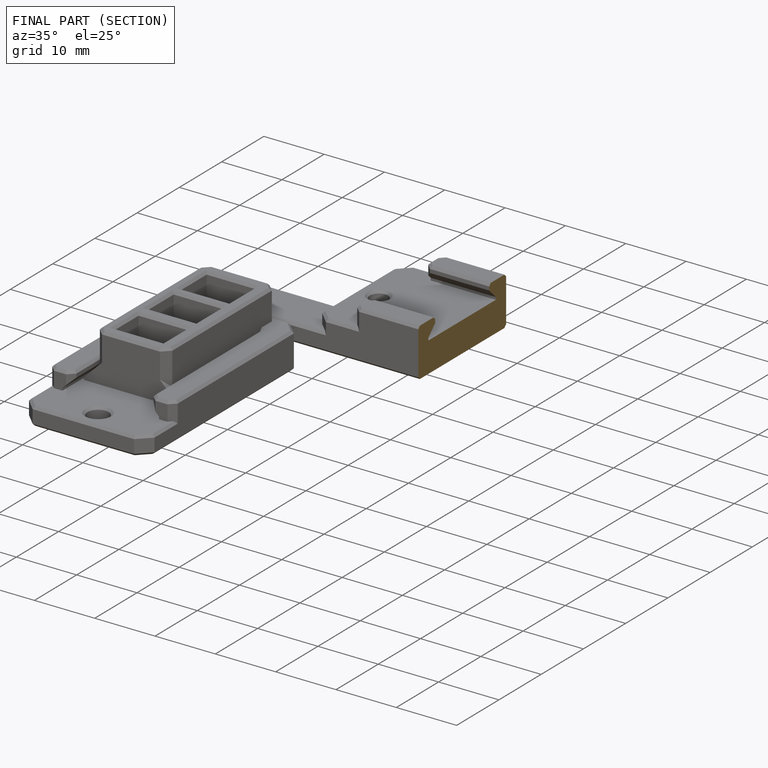
[diagram: finished part — half-section view (interior)]
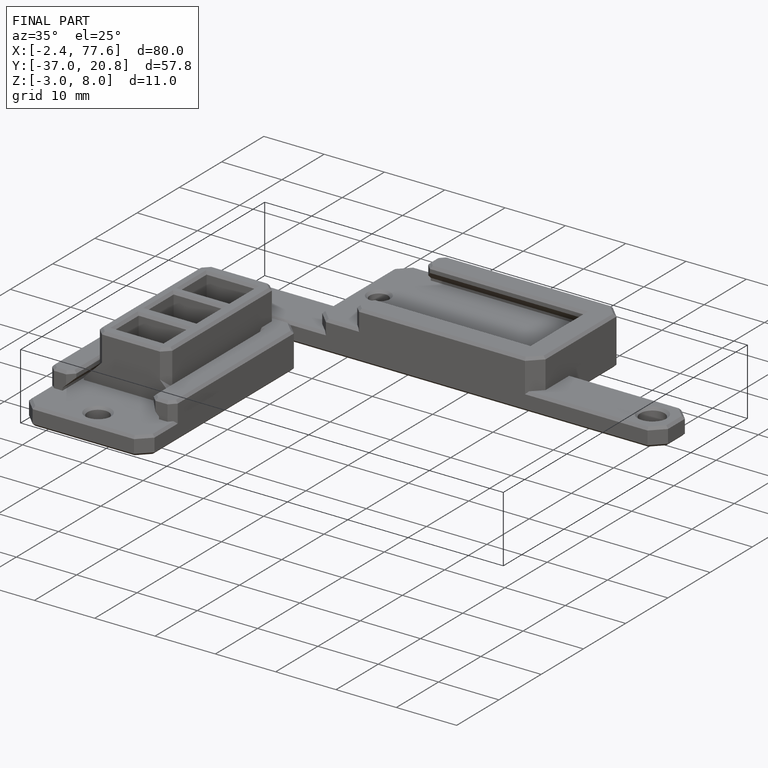
[diagram: finished part — iso view with bounding-box wireframe]
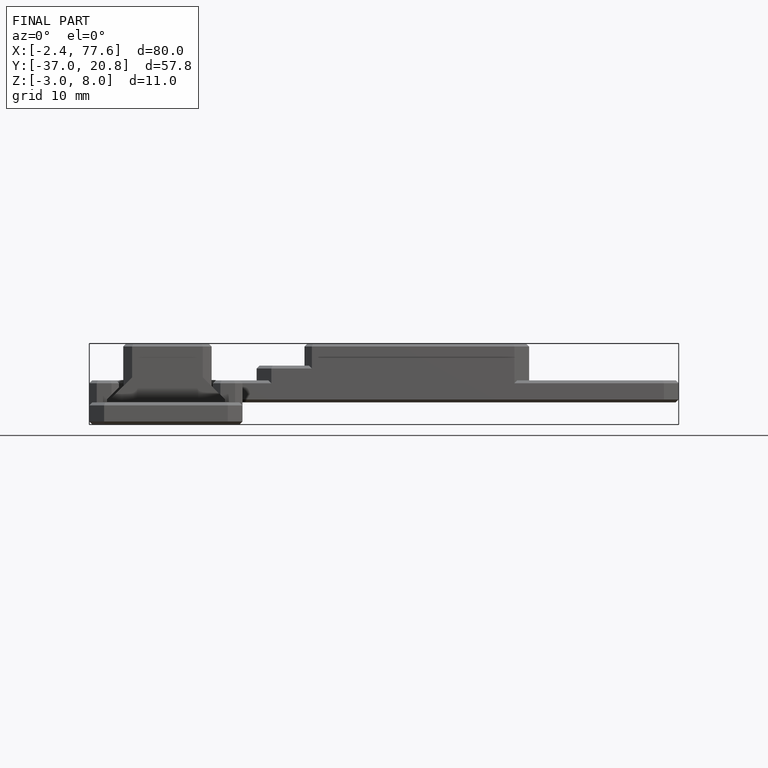
[diagram: finished part — front view with bounding-box wireframe]
